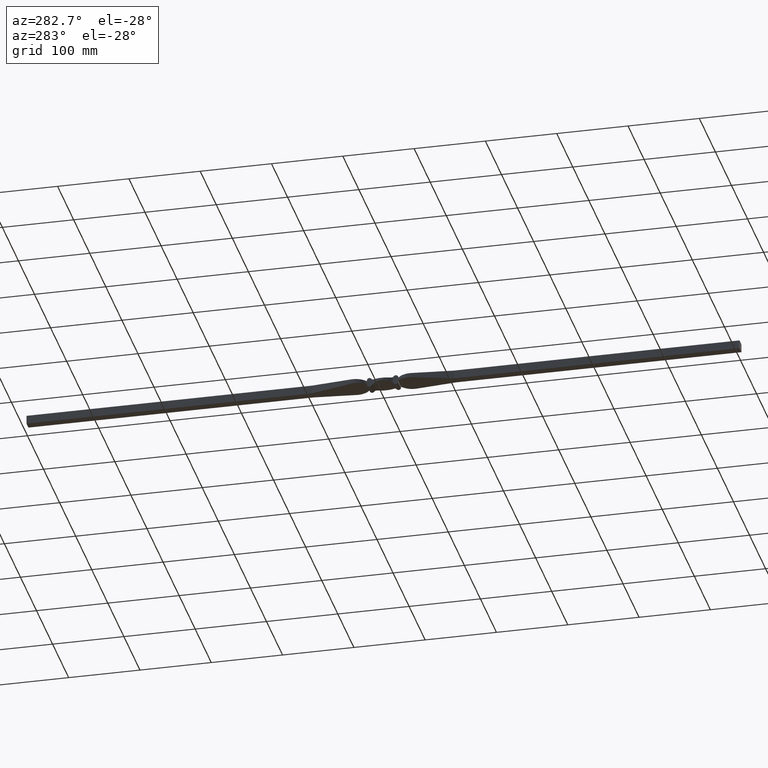
[diagram: clean part render]
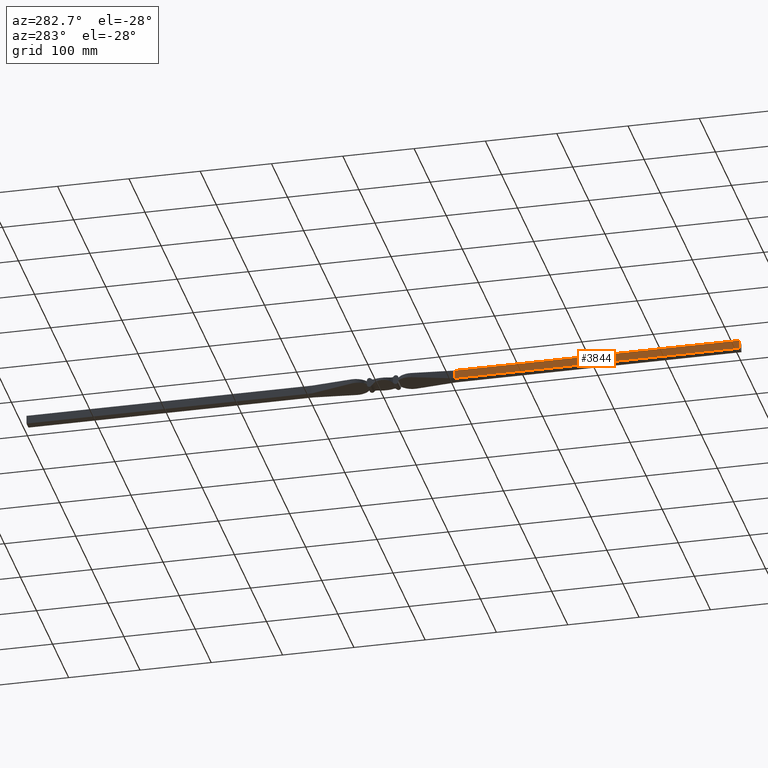
[diagram: same view with one face highlighted and labeled with its STEP entity id]
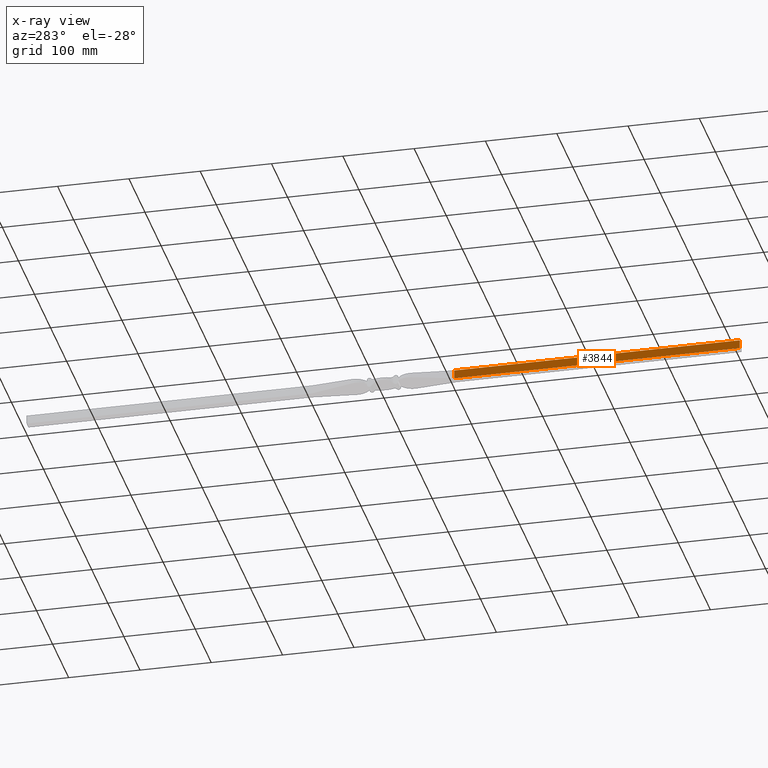
[diagram: x-ray of the same camera — body ghosted, the highlighted face saturated]
A machine part, auxiliary view. The second image highlights one B-rep face of the part: STEP entity #3844.
The next image is the same camera in x-ray: the body ghosted, the highlighted face saturated — about 0% of this face is hidden behind the body in this view.
In plain terms, the highlighted planar face has unit normal (1, -0, 0).
Its self-contained STEP definition (entity closure, byte-faithful):
#69 = DIRECTION ( 'NONE',  ( -0.000000000000000000, 0.000000000000000000, 1.000000000000000000 ) ) ;
#624 = CARTESIAN_POINT ( 'NONE',  ( -6.000000000004242828, -1016.970562748477278, 6.000000000000000000 ) ) ;
#1037 = VERTEX_POINT ( 'NONE', #9846 ) ;
#1175 = ORIENTED_EDGE ( 'NONE', *, *, #10959, .T. ) ;
#1347 = VERTEX_POINT ( 'NONE', #6799 ) ;
#1838 = DIRECTION ( 'NONE',  ( 4.625929269271485322E-15, 1.000000000000000000, 0.000000000000000000 ) ) ;
#2775 = ORIENTED_EDGE ( 'NONE', *, *, #9769, .T. ) ;
#2863 = CARTESIAN_POINT ( 'NONE',  ( -6.000000000000000000, -99.99999999999997158, 6.000000000000000000 ) ) ;
#3314 = LINE ( 'NONE', #624, #7840 ) ;
#3493 = FACE_OUTER_BOUND ( 'NONE', #4070, .T. ) ;
#3521 = EDGE_CURVE ( 'NONE', #1347, #7151, #11077, .T. ) ;
#3523 = CARTESIAN_POINT ( 'NONE',  ( -6.000000000004242828, -1016.970562748477278, 6.000000000000000000 ) ) ;
#3575 = EDGE_CURVE ( 'NONE', #1037, #7151, #7443, .T. ) ;
#3625 = VERTEX_POINT ( 'NONE', #6428 ) ;
#3835 = AXIS2_PLACEMENT_3D ( 'NONE', #3523, #4422, #1838 ) ;
#3844 = ADVANCED_FACE ( 'NONE', ( #3493 ), #7215, .F. ) ;
#4017 = VECTOR ( 'NONE', #69, 1000.000000000000000 ) ;
#4070 = EDGE_LOOP ( 'NONE', ( #6424, #2775, #1175, #7938 ) ) ;
#4422 = DIRECTION ( 'NONE',  ( 1.000000000000000000, -4.625929269271485322E-15, 0.000000000000000000 ) ) ;
#5516 = CARTESIAN_POINT ( 'NONE',  ( -6.000000000001850964, -500.0000000000000000, 6.000000000000000000 ) ) ;
#5996 = DIRECTION ( 'NONE',  ( 4.625929269271485322E-15, 1.000000000000000000, -0.000000000000000000 ) ) ;
#6037 = VECTOR ( 'NONE', #10000, 1000.000000000000000 ) ;
#6073 = CARTESIAN_POINT ( 'NONE',  ( -6.000000000004242828, -1016.970562748477278, -6.000000000000000000 ) ) ;
#6424 = ORIENTED_EDGE ( 'NONE', *, *, #3521, .F. ) ;
#6428 = CARTESIAN_POINT ( 'NONE',  ( -6.000000000001850964, -500.0000000000000000, 6.000000000000000000 ) ) ;
#6799 = CARTESIAN_POINT ( 'NONE',  ( -6.000000000001850964, -500.0000000000000000, -6.000000000000000000 ) ) ;
#7151 = VERTEX_POINT ( 'NONE', #10311 ) ;
#7215 = PLANE ( 'NONE',  #3835 ) ;
#7443 = LINE ( 'NONE', #2863, #6037 ) ;
#7840 = VECTOR ( 'NONE', #9622, 1000.000000000000000 ) ;
#7859 = LINE ( 'NONE', #5516, #4017 ) ;
#7938 = ORIENTED_EDGE ( 'NONE', *, *, #3575, .T. ) ;
#8158 = VECTOR ( 'NONE', #5996, 1000.000000000000000 ) ;
#9622 = DIRECTION ( 'NONE',  ( 4.625929269271485322E-15, 1.000000000000000000, -0.000000000000000000 ) ) ;
#9769 = EDGE_CURVE ( 'NONE', #1347, #3625, #7859, .T. ) ;
#9846 = CARTESIAN_POINT ( 'NONE',  ( -6.000000000000000000, -99.99999999999997158, 6.000000000000000000 ) ) ;
#10000 = DIRECTION ( 'NONE',  ( -0.000000000000000000, 0.000000000000000000, -1.000000000000000000 ) ) ;
#10311 = CARTESIAN_POINT ( 'NONE',  ( -6.000000000000000000, -100.0000000000000000, -6.000000000000000000 ) ) ;
#10959 = EDGE_CURVE ( 'NONE', #3625, #1037, #3314, .T. ) ;
#11077 = LINE ( 'NONE', #6073, #8158 ) ;